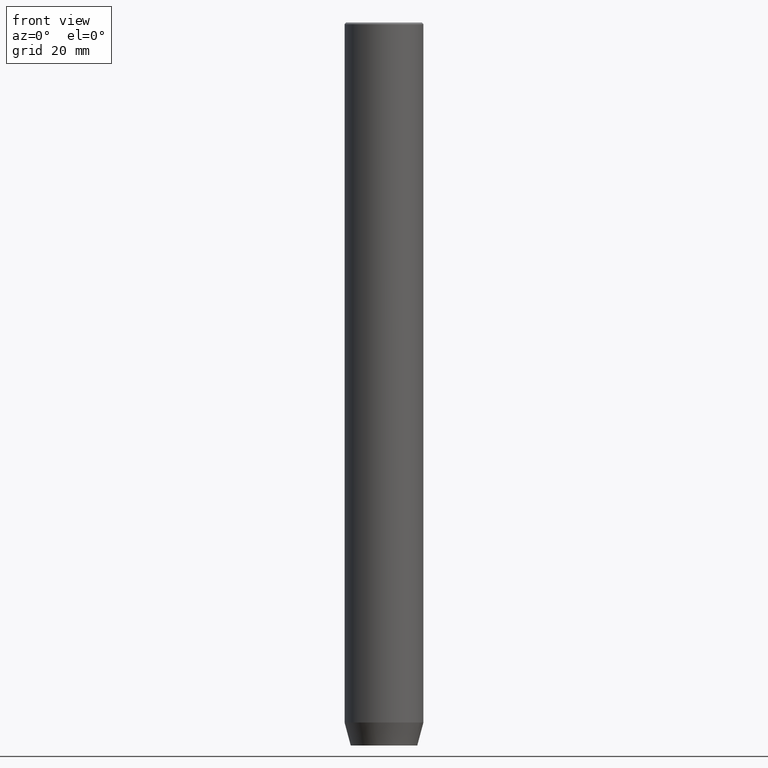
[diagram: clean part render]
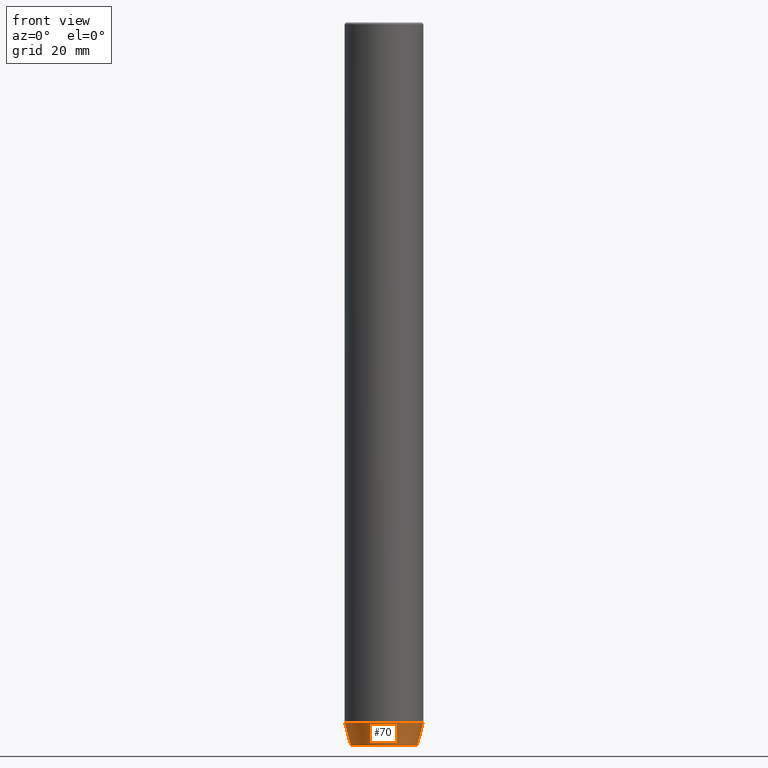
[diagram: same view with one face highlighted and labeled with its STEP entity id]
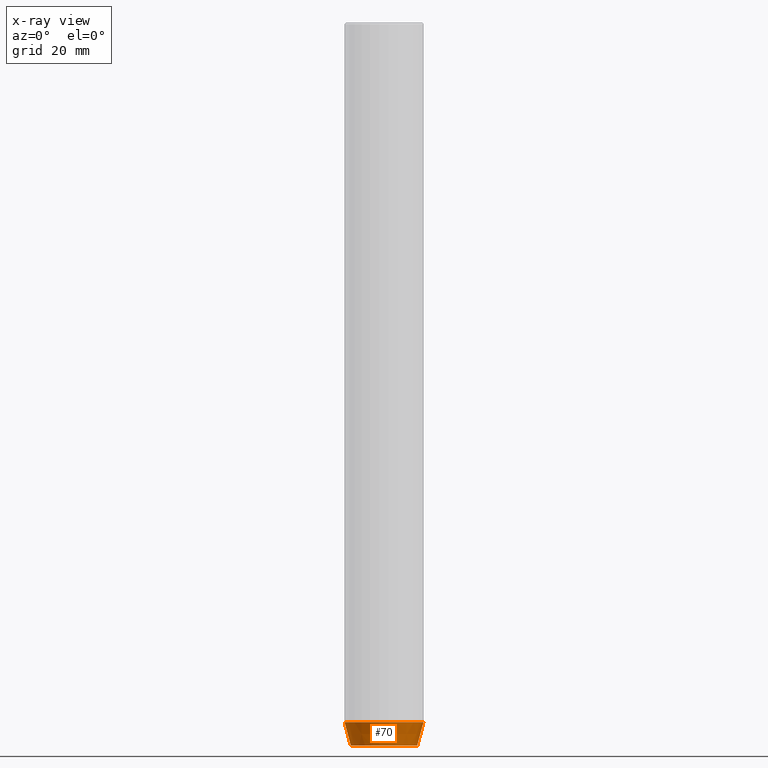
[diagram: x-ray of the same camera — body ghosted, the highlighted face saturated]
A machine part, front view. The second image highlights one B-rep face of the part: STEP entity #70.
The next image is the same camera in x-ray: the body ghosted, the highlighted face saturated — about 0% of this face is hidden behind the body in this view.
In plain terms, the highlighted conical surface has half-angle 15 deg.
Its self-contained STEP definition (entity closure, byte-faithful):
#3 = FACE_OUTER_BOUND ( 'NONE', #558, .T. ) ;
#17 = DIRECTION ( 'NONE',  ( 0.2588190451025212391, 0.000000000000000000, 0.9659258262890680902 ) ) ;
#29 = VERTEX_POINT ( 'NONE', #200 ) ;
#34 = AXIS2_PLACEMENT_3D ( 'NONE', #541, #135, #236 ) ;
#64 = VERTEX_POINT ( 'NONE', #446 ) ;
#70 = ADVANCED_FACE ( 'NONE', ( #3 ), #251, .T. ) ;
#121 = ORIENTED_EDGE ( 'NONE', *, *, #228, .T. ) ;
#124 = DIRECTION ( 'NONE',  ( 1.000000000000000000, 0.000000000000000000, 0.000000000000000000 ) ) ;
#135 = DIRECTION ( 'NONE',  ( -0.000000000000000000, -0.000000000000000000, 1.000000000000000000 ) ) ;
#143 = CARTESIAN_POINT ( 'NONE',  ( 0.000000000000000000, 0.000000000000000000, -212.9999999999999716 ) ) ;
#153 = ORIENTED_EDGE ( 'NONE', *, *, #540, .F. ) ;
#184 = ORIENTED_EDGE ( 'NONE', *, *, #215, .F. ) ;
#200 = CARTESIAN_POINT ( 'NONE',  ( -10.12435565298212836, 1.354726066681110655E-15, -220.0000000000000000 ) ) ;
#215 = EDGE_CURVE ( 'NONE', #64, #309, #217, .T. ) ;
#216 = CARTESIAN_POINT ( 'NONE',  ( 12.00000000000000000, 0.000000000000000000, -212.9999999999999716 ) ) ;
#217 = CIRCLE ( 'NONE', #574, 12.00000000000000000 ) ;
#228 = EDGE_CURVE ( 'NONE', #29, #436, #321, .T. ) ;
#233 = CARTESIAN_POINT ( 'NONE',  ( 12.00000000000000000, 0.000000000000000000, -212.9999999999999716 ) ) ;
#236 = DIRECTION ( 'NONE',  ( 1.000000000000000000, 0.000000000000000000, 0.000000000000000000 ) ) ;
#251 = CONICAL_SURFACE ( 'NONE', #34, 12.00000000000000000, 0.2617993877991499629 ) ;
#303 = DIRECTION ( 'NONE',  ( -0.000000000000000000, -0.000000000000000000, 1.000000000000000000 ) ) ;
#309 = VERTEX_POINT ( 'NONE', #216 ) ;
#321 = CIRCLE ( 'NONE', #395, 10.12435565298212836 ) ;
#325 = ORIENTED_EDGE ( 'NONE', *, *, #512, .T. ) ;
#379 = LINE ( 'NONE', #517, #537 ) ;
#395 = AXIS2_PLACEMENT_3D ( 'NONE', #577, #533, #124 ) ;
#397 = DIRECTION ( 'NONE',  ( 1.000000000000000000, 0.000000000000000000, 0.000000000000000000 ) ) ;
#436 = VERTEX_POINT ( 'NONE', #542 ) ;
#446 = CARTESIAN_POINT ( 'NONE',  ( -12.00000000000000000, 1.469576158976823947E-15, -212.9999999999999716 ) ) ;
#512 = EDGE_CURVE ( 'NONE', #436, #309, #561, .T. ) ;
#517 = CARTESIAN_POINT ( 'NONE',  ( -12.00000000000000000, 1.469576158976823947E-15, -212.9999999999999716 ) ) ;
#521 = DIRECTION ( 'NONE',  ( -0.2588190451025212391, 3.169619151431771721E-17, 0.9659258262890680902 ) ) ;
#533 = DIRECTION ( 'NONE',  ( -0.000000000000000000, -0.000000000000000000, 1.000000000000000000 ) ) ;
#537 = VECTOR ( 'NONE', #521, 1000.000000000000114 ) ;
#540 = EDGE_CURVE ( 'NONE', #29, #64, #379, .T. ) ;
#541 = CARTESIAN_POINT ( 'NONE',  ( 0.000000000000000000, 0.000000000000000000, -212.9999999999999716 ) ) ;
#542 = CARTESIAN_POINT ( 'NONE',  ( 10.12435565298212836, 0.000000000000000000, -220.0000000000000000 ) ) ;
#558 = EDGE_LOOP ( 'NONE', ( #153, #121, #325, #184 ) ) ;
#561 = LINE ( 'NONE', #233, #566 ) ;
#566 = VECTOR ( 'NONE', #17, 1000.000000000000114 ) ;
#574 = AXIS2_PLACEMENT_3D ( 'NONE', #143, #303, #397 ) ;
#577 = CARTESIAN_POINT ( 'NONE',  ( 0.000000000000000000, 0.000000000000000000, -220.0000000000000000 ) ) ;